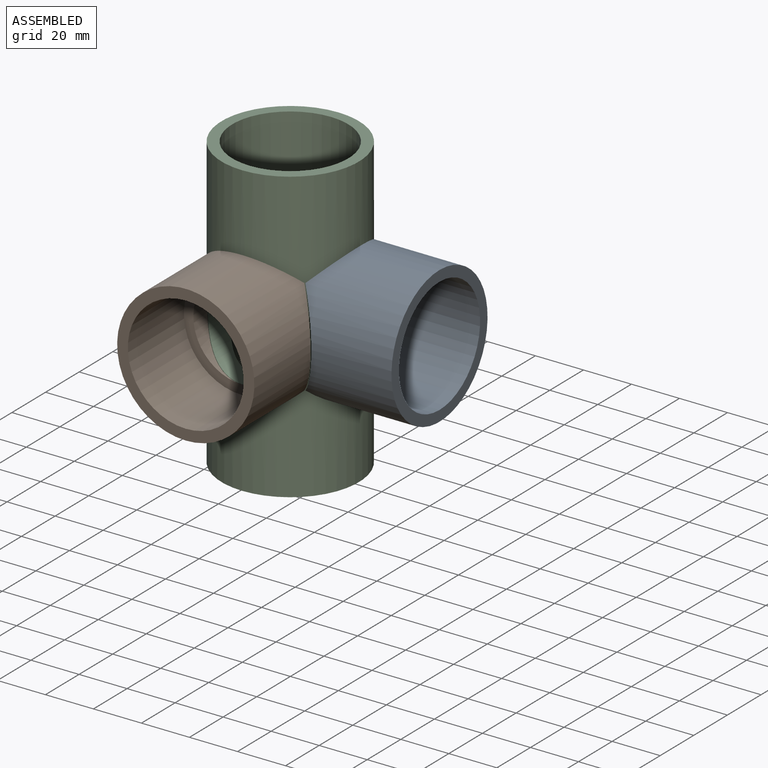
[diagram: assembled view]
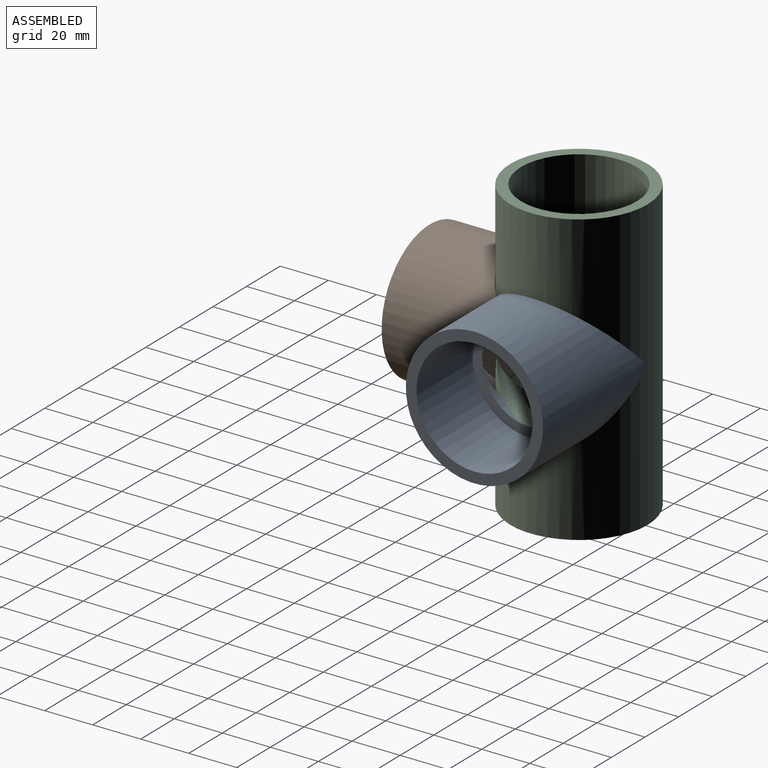
[diagram: assembled view, second angle]
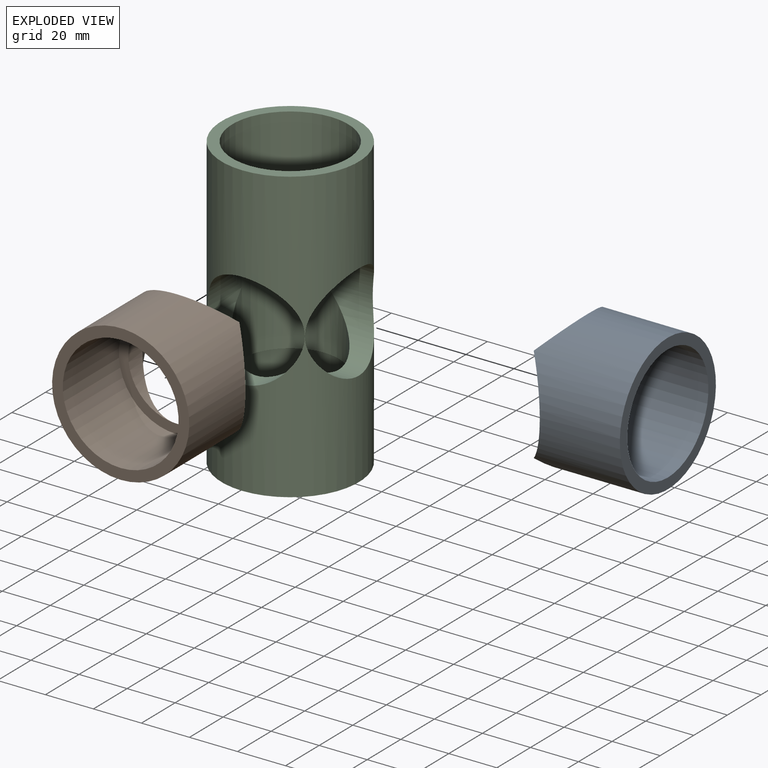
[diagram: exploded view]
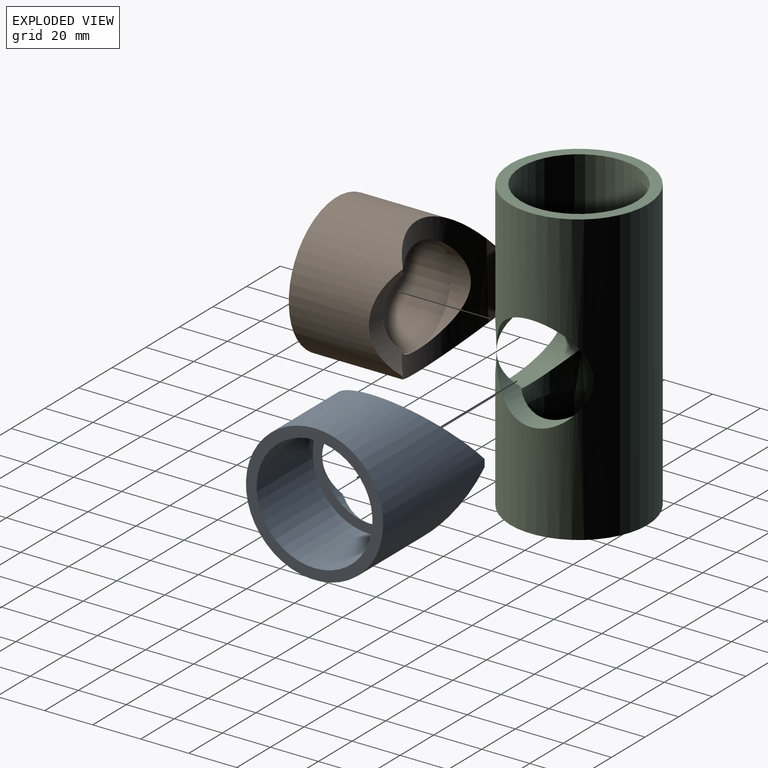
[diagram: exploded view, second angle]
ASSEMBLY  parts=3 mates=2
PART A: 8 faces, bbox 57.2x60.3x57.2 mm
  f0: cylinder r=20.19mm len=40.39mm, axis (0,1,0), area 341.1mm2, adj f5,f6,f7
  f1: cylinder r=28.57mm len=60.33mm, axis (0,1,0), area 7173.1mm2, adj f2,f3,f6,f7
  f2: plane 57.15x57.15mm, normal (0,-1,0), area 736mm2, adj f1,f4
  f3: plane 3.2x0.05mm, normal (0,1,0), area 0.1mm2, adj f1,f6
  f4: cylinder r=24.13mm len=48.26mm, axis (0,-1,0), area 5054.4mm2, adj f2,f5
  f5: plane 48.26x48.26mm, normal (0,-1,0), area 548.2mm2, adj f0,f4
  f6: cylinder r=28.57mm len=57.18mm, axis (0,0,1), area 1287.9mm2, adj f0,f1,f3,f7
  f7: cylinder r=28.57mm len=40.41mm, axis (1,0,0), area 348.3mm2, adj f0,f1,f6
PART B: same geometry as A
PART C: 10 faces, bbox 57.2x120.7x57.2 mm
  f0: cylinder r=28.57mm len=120.65mm, axis (0,-1,0), area 18897.6mm2, adj f1,f2,f8,f9
  f1: plane 57.15x57.15mm, normal (0,1,0), area 736mm2, adj f0,f3
  f2: plane 57.15x57.15mm, normal (0,-1,0), area 736mm2, adj f0,f5
  f3: cylinder r=24.13mm len=48.26mm, axis (0,1,0), area 5054.4mm2, adj f1,f4
  f4: plane 48.26x48.26mm, normal (0,1,0), area 548.2mm2, adj f3,f7
  f5: cylinder r=24.13mm len=48.26mm, axis (0,-1,0), area 5054.4mm2, adj f2,f6
  f6: plane 48.26x48.26mm, normal (0,-1,0), area 548.2mm2, adj f5,f7
  f7: cylinder r=20.19mm len=53.98mm, axis (0,-1,0), area 4063.8mm2, adj f4,f6,f8,f9
  f8: cylinder r=20.19mm len=40.39mm, axis (0,0,1), area 1150.2mm2, adj f0,f7,f9
  f9: cylinder r=20.19mm len=40.39mm, axis (1,0,0), area 1150.2mm2, adj f0,f7,f8
PLACE A rot(axis=(0.71,-0.71,0),180deg) t=(-54.27,37.2,56.35)mm
PLACE B t=(-56.1,35.37,56.39)mm
PLACE C rot(axis=(1,0,0),90deg) t=(-56.1,37.2,-3.93)mm
MATE fastened C.f9 <-> A.f0  axis (1,0,0) through (-27.28,37.2,56.35)mm
MATE fastened C.f8 <-> B.f4  axis (0,-1,0) through (-56.1,8.38,56.39)mm
